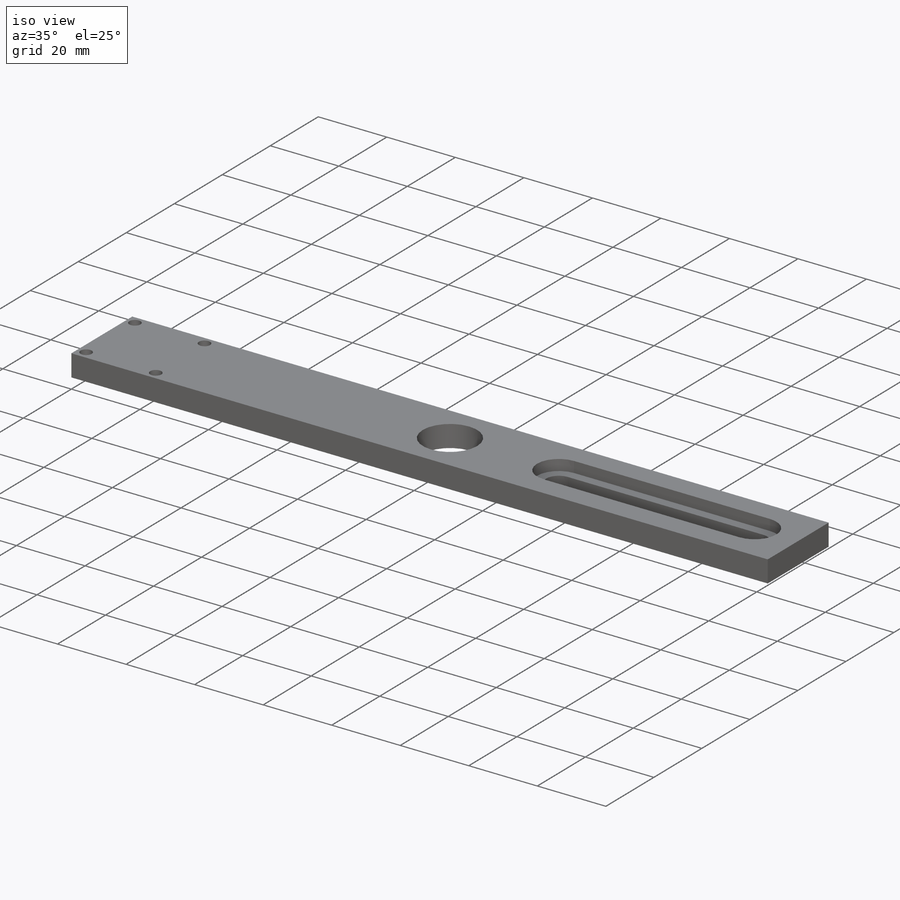
[diagram: iso view]
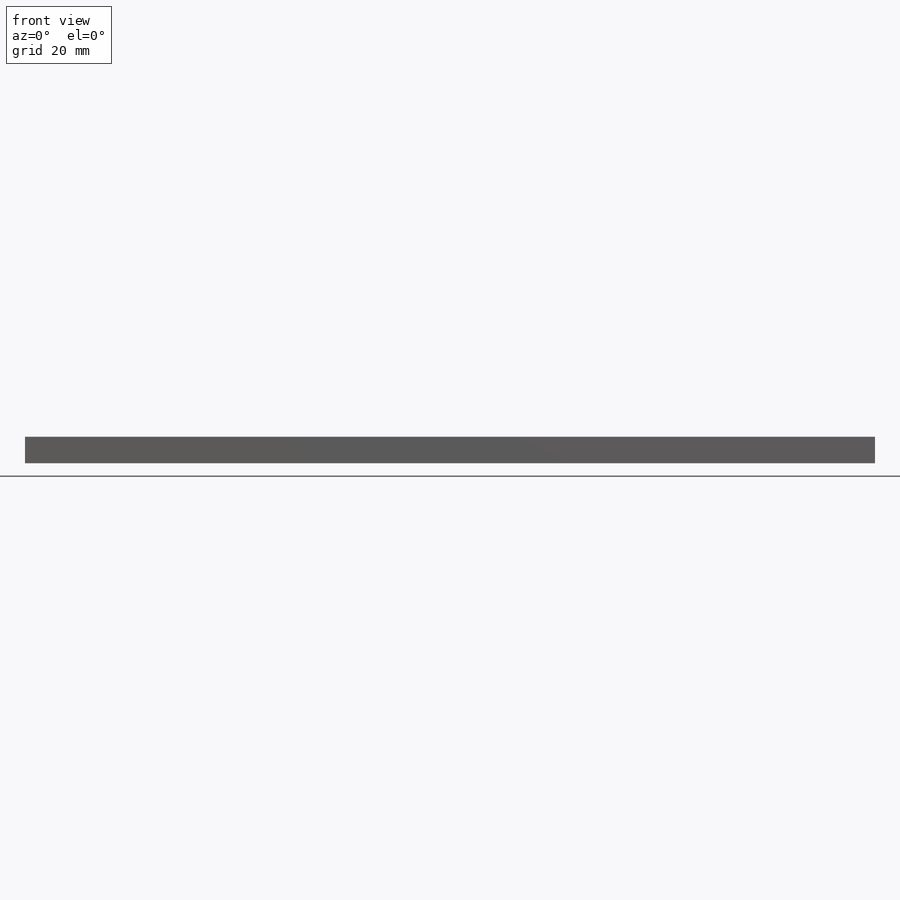
[diagram: front view]
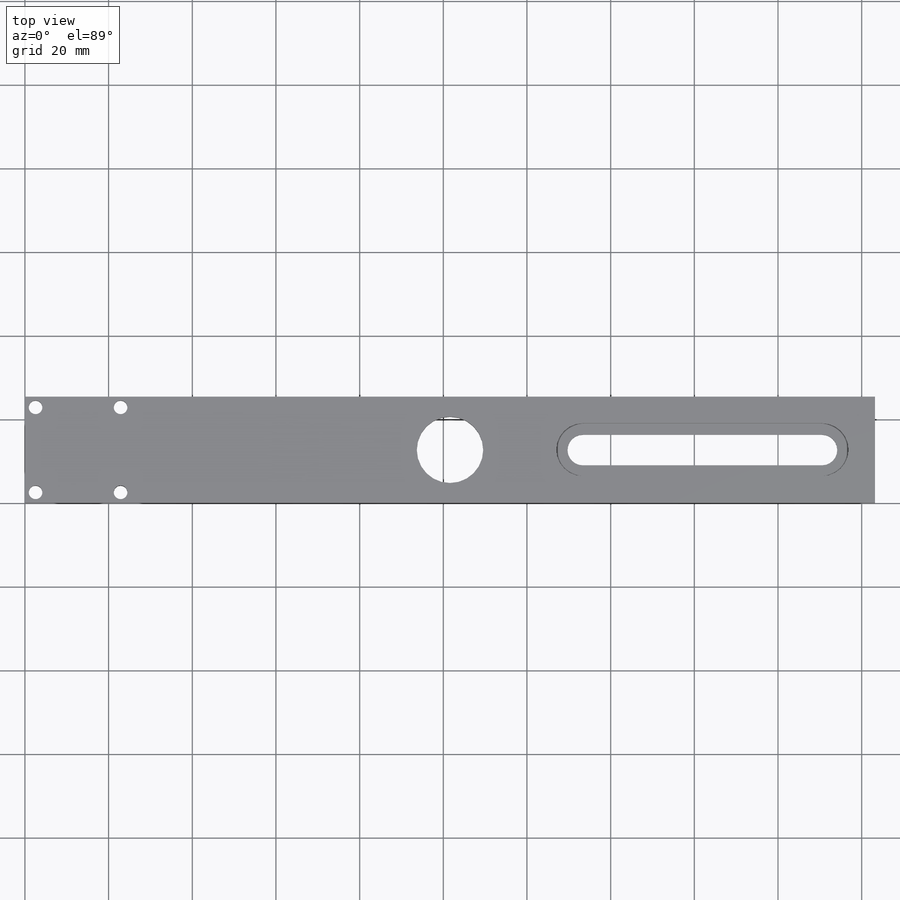
[diagram: top view]
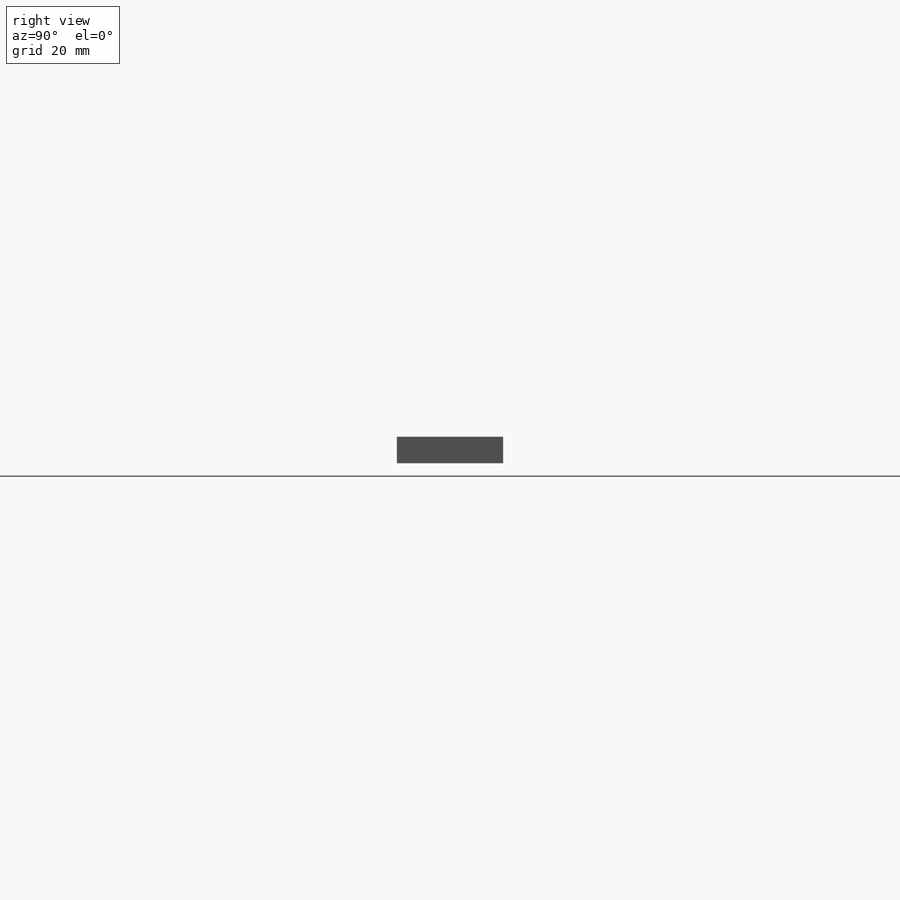
[diagram: right view]
SOLIDWORKS PART (.sldprt)
format: sldprt  version: not decoded by parser v0  size: 229,376 bytes
history: native  units: mm
features: sketch x7, hole x2, cut_extrude x2, material x1, extrude x1 (+11 scaffold rows collapsed)
feature tree (24):
  scaffold x11  (default folders/planes/origin — collapsed)
  material  "6061 Alloy"
  sketch  "Sketch1"  dims[D1=203.2mm D2=25.4mm]
  extrude  "Boss-Extrude1"  Depth=6.35mm
  hole  "5/8 (0.625) Diameter Hole1"  Diameter=15.875mm Depth=25.4mm
  sketch  "Sketch5"
  sketch  "Sketch4"  dims[hole-wizard template sketch: 46 standard entries collapsed; hole parameters kept: c15.Hole Dia.=15.875mm c15.Hole Depth=25.4mm c15.D3=~14.816244mm c15.Drill Angle=118.0deg]
  sketch  "Sketch6"  dims[D1=3.6576mm D2=12.7mm D3=69.85mm]
  cut_extrude  "Cut-Extrude1"  [1 undecoded]
  sketch  "Sketch7"  dims[D1=6.35mm D2=12.7mm D3=69.85mm]
  cut_extrude  "Cut-Extrude2"  Depth=3.175mm
  hole  "#4 Clearance Hole1"  Diameter=3.2639mm Depth=6.35mm
  sketch  "Sketch9"  dims[D1=2.54mm D2=2.54mm D3=2.54mm D4=22.86mm]
  sketch  "Sketch8"  dims[hole-wizard template sketch: 60 standard entries collapsed; hole parameters kept: c18.Thru Hole Depth=6.35mm]
decode coverage: 10 of 12 modeling features carry decoded parameters
note: ~ marks probable driven/reference dimensions
note: 1 parameter value undecoded
note: suppression state not decoded; provenance and decode notes live in map.json
